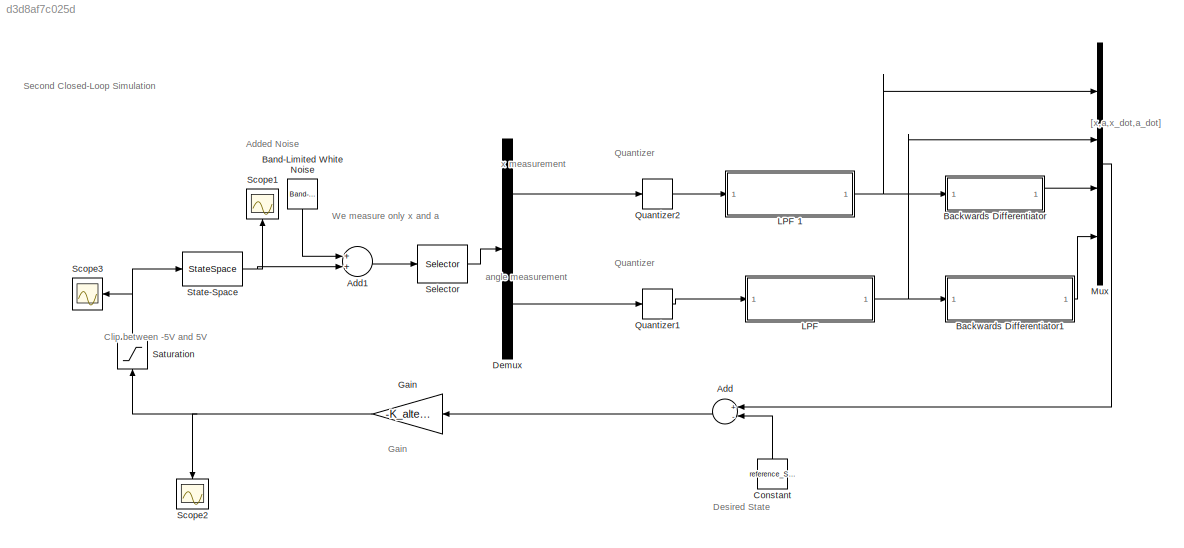
MODEL slx_d3d8af7c025d
KIND model
CONFIG AbsTol = auto
CONFIG EnableMultiTasking = off
CONFIG FixedStep = auto
CONFIG MaxStep = auto
CONFIG MinStep = auto
CONFIG RelTol = 1e-3
CONFIG SampleTimeConstraint = Unconstrained
CONFIG Solver = VariableStepAuto
CONFIG SolverName = VariableStepAuto
CONFIG StartTime = 0.0
CONFIG StopTime = 10.0
BLOCK [Sum] Add
  InputSameDT = off
  Inputs = +-
  OutDataTypeStr = Inherit: Inherit via internal rule
  Ports = [2, 1]
  SaturateOnIntegerOverflow = off
BLOCK [Sum] Add1
  InputSameDT = off
  OutDataTypeStr = Inherit: Inherit via internal rule
  Ports = [2, 1]
  SaturateOnIntegerOverflow = off
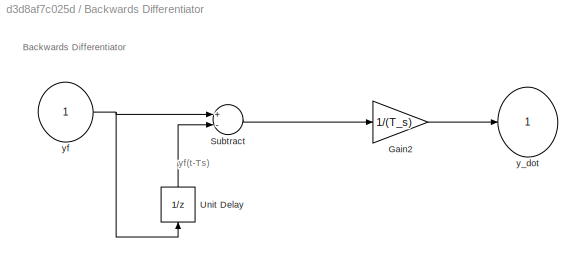
BLOCK [SubSystem] Backwards Differentiator
  Ports = [1, 1]
  RequestExecContextInheritance = off
BLOCK [Gain] Backwards Differentiator/Gain2
  Gain = 1/(T_s)
  OutDataTypeStr = Inherit: Inherit via internal rule
  ParamDataTypeStr = Inherit: Inherit via internal rule
  SaturateOnIntegerOverflow = off
BLOCK [Sum] Backwards Differentiator/Subtract
  InputSameDT = off
  Inputs = +-
  OutDataTypeStr = Inherit: Inherit via internal rule
  Ports = [2, 1]
  SaturateOnIntegerOverflow = off
BLOCK [UnitDelay] Backwards Differentiator/Unit Delay
  InputProcessing = Elements as channels (sample based)
  SampleTime = T_s
BLOCK [Outport] Backwards Differentiator/y_dot
  IconDisplay = Port number
BLOCK [Inport] Backwards Differentiator/yf
  IconDisplay = Port number
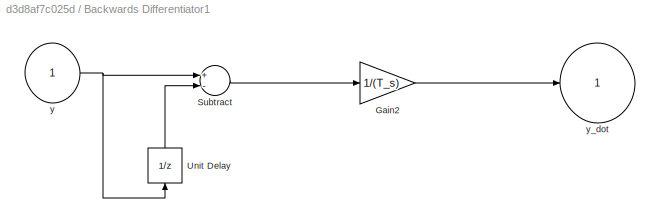
BLOCK [SubSystem] Backwards Differentiator1
  Ports = [1, 1]
  RequestExecContextInheritance = off
BLOCK [Gain] Backwards Differentiator1/Gain2
  Gain = 1/(T_s)
  OutDataTypeStr = Inherit: Inherit via internal rule
  ParamDataTypeStr = Inherit: Inherit via internal rule
  SaturateOnIntegerOverflow = off
BLOCK [Sum] Backwards Differentiator1/Subtract
  InputSameDT = off
  Inputs = +-
  OutDataTypeStr = Inherit: Inherit via internal rule
  Ports = [2, 1]
  SaturateOnIntegerOverflow = off
BLOCK [UnitDelay] Backwards Differentiator1/Unit Delay
  InputProcessing = Elements as channels (sample based)
  SampleTime = T_s
BLOCK [Inport] Backwards Differentiator1/y
  IconDisplay = Port number
BLOCK [Outport] Backwards Differentiator1/y_dot
  IconDisplay = Port number
BLOCK [Reference] Band-Limited White Noise  REF=simulink/Sources/Band-Limited
White Noise
  Ports = [0, 1]
  SourceBlock = simulink/Sources/Band-Limited\nWhite Noise
  SourceProductBaseCode = SL
  SourceProductName = Simulink
  SourceType = Band-Limited White Noise.
BLOCK [Constant] Constant
  Value = reference_State
BLOCK [Demux] Demux
  DisplayOption = bar
  Outputs = 2
  Ports = [1, 2]
BLOCK [Gain] Gain
  Gain = -K_alternative
  Multiplication = Matrix(K*u) (u vector)
  OutDataTypeStr = Inherit: Inherit via internal rule
  ParamDataTypeStr = Inherit: Inherit via internal rule
  SaturateOnIntegerOverflow = off
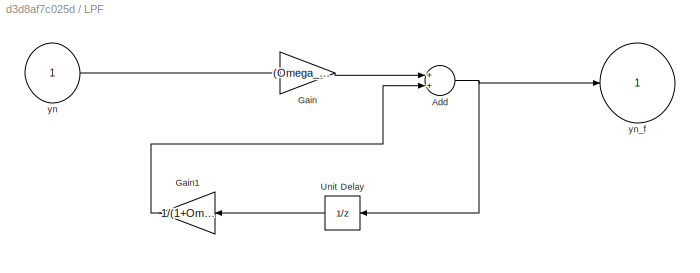
BLOCK [SubSystem] LPF 
  Ports = [1, 1]
  RequestExecContextInheritance = off
BLOCK [Sum] LPF /Add
  InputSameDT = off
  OutDataTypeStr = Inherit: Inherit via internal rule
  Ports = [2, 1]
  SaturateOnIntegerOverflow = off
BLOCK [Gain] LPF /Gain
  Gain = (Omega_c*T_s)/(1+Omega_c*T_s)
  OutDataTypeStr = Inherit: Inherit via internal rule
  ParamDataTypeStr = Inherit: Inherit via internal rule
  SaturateOnIntegerOverflow = off
BLOCK [Gain] LPF /Gain1
  Gain = 1/(1+Omega_c*T_s)
  OutDataTypeStr = Inherit: Inherit via internal rule
  ParamDataTypeStr = Inherit: Inherit via internal rule
  SaturateOnIntegerOverflow = off
BLOCK [UnitDelay] LPF /Unit Delay
  InputProcessing = Elements as channels (sample based)
  SampleTime = T_s
BLOCK [Inport] LPF /yn
  IconDisplay = Port number
BLOCK [Outport] LPF /yn_f
  IconDisplay = Port number
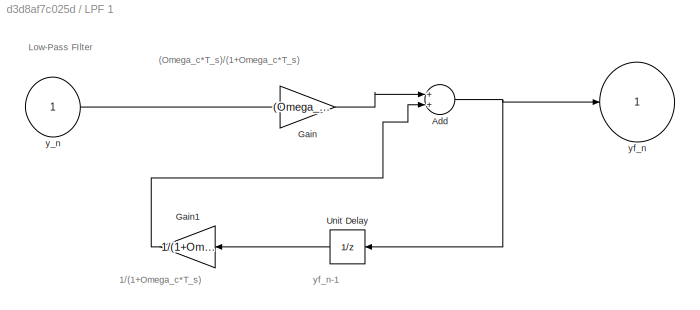
BLOCK [SubSystem] LPF 1
  Ports = [1, 1]
  RequestExecContextInheritance = off
BLOCK [Sum] LPF 1/Add
  InputSameDT = off
  OutDataTypeStr = Inherit: Inherit via internal rule
  Ports = [2, 1]
  SaturateOnIntegerOverflow = off
BLOCK [Gain] LPF 1/Gain
  Gain = (Omega_c*T_s)/(1+Omega_c*T_s)
  OutDataTypeStr = Inherit: Inherit via internal rule
  ParamDataTypeStr = Inherit: Inherit via internal rule
  SaturateOnIntegerOverflow = off
BLOCK [Gain] LPF 1/Gain1
  Gain = 1/(1+Omega_c*T_s)
  OutDataTypeStr = Inherit: Inherit via internal rule
  ParamDataTypeStr = Inherit: Inherit via internal rule
  SaturateOnIntegerOverflow = off
BLOCK [UnitDelay] LPF 1/Unit Delay
  InputProcessing = Elements as channels (sample based)
  SampleTime = T_s
BLOCK [Inport] LPF 1/y_n
  IconDisplay = Port number
BLOCK [Outport] LPF 1/yf_n
  IconDisplay = Port number
BLOCK [Mux] Mux
  DisplayOption = bar
  Ports = [4, 1]
BLOCK [Quantizer] Quantizer1
  QuantizationInterval = Q_interval
BLOCK [Quantizer] Quantizer2
  QuantizationInterval = Q_interval
BLOCK [Saturate] Saturation
  InputPortMap = u0
  LowerLimit = -V_max
  Ports = [1, 1]
  UpperLimit = V_max
BLOCK [Scope] Scope1
  Floating = off
  NumInputPorts = 1
  Ports = [1]
  ScopeSpecificationString = Simulink.scopes.TimeScopeBlockCfg('CurrentConfiguration', extmgr.ConfigurationSet(extmgr.Configuration('Core','General UI',true,'FigureColor',[1 1 1]),extmgr.Configuration('Core','Source UI',true),extmgr.Configuration('Sources','WiredSimulink',true,'DataLogging',true,'DataLoggingVariableName','xsecondloopdink','DataLoggingSaveFormat','StructureWithTime'),extmgr.Configuration('Visuals','Time Domain...<+2217ch>
BLOCK [Scope] Scope2
  Floating = off
  NumInputPorts = 1
  Ports = [1]
  ScopeSpecificationString = Simulink.scopes.TimeScopeBlockCfg('CurrentConfiguration', extmgr.ConfigurationSet(extmgr.Configuration('Core','General UI',true,'FigureColor',[1 1 1]),extmgr.Configuration('Core','Source UI',true),extmgr.Configuration('Sources','WiredSimulink',true,'DataLoggingVariableName','ScopeData1'),extmgr.Configuration('Visuals','Time Domain',true,'SerializedDisplays',{struct('MinYLimReal','-5.39266','MaxYLi...<+2093ch>
BLOCK [Scope] Scope3
  Floating = off
  NumInputPorts = 1
  Ports = [1]
  ScopeSpecificationString = Simulink.scopes.TimeScopeBlockCfg('CurrentConfiguration', extmgr.ConfigurationSet(extmgr.Configuration('Core','General UI',true,'FigureColor',[1 1 1]),extmgr.Configuration('Core','Source UI',true),extmgr.Configuration('Sources','WiredSimulink',true,'DataLoggingVariableName','ScopeData2'),extmgr.Configuration('Visuals','Time Domain',true,'SerializedDisplays',{struct('MinYLimReal','-5.39266','MaxYLi...<+2059ch>
BLOCK [Selector] Selector
  IndexOptions = Index vector (dialog)
  Indices = [1 2]
  InputPortWidth = 4
  OutputSizes = 1
  Ports = [1, 1]
BLOCK [StateSpace] State-Space
  A = A
  B = B
  C = C
  D = D
  InitialCondition = intial_State
  Ports = [1, 1]
ANNOTATION (root): Second Closed-Loop Simulation
ANNOTATION (root): Added Noise
ANNOTATION (root): Clip between -5V and 5V
ANNOTATION (root): Desired State
ANNOTATION (root): Gain
ANNOTATION (root): Quantizer
ANNOTATION (root): We measure only x and a
ANNOTATION (root): [x,a,x_dot,a_dot]
ANNOTATION (root): angle measurement
ANNOTATION (root): x measurement
ANNOTATION Backwards Differentiator: Backwards Differentiator
ANNOTATION Backwards Differentiator: yf(t-Ts)
ANNOTATION LPF 1: (Omega_c*T_s)/(1+Omega_c*T_s)
ANNOTATION LPF 1: 1/(1+Omega_c*T_s)
ANNOTATION LPF 1: Low-Pass FIlter
ANNOTATION LPF 1: yf_n-1
LINE Add1:1 -> Selector:1
LINE Add:1 -> Gain:1
LINE Backwards Differentiator/Gain2:1 -> Backwards Differentiator/y_dot:1
LINE Backwards Differentiator/Subtract:1 -> Backwards Differentiator/Gain2:1
LINE Backwards Differentiator/Unit Delay:1 -> Backwards Differentiator/Subtract:2
NET Backwards Differentiator/yf:1 -> Backwards Differentiator/Subtract:1, Backwards Differentiator/Unit Delay:1
LINE Backwards Differentiator1/Gain2:1 -> Backwards Differentiator1/y_dot:1
LINE Backwards Differentiator1/Subtract:1 -> Backwards Differentiator1/Gain2:1
LINE Backwards Differentiator1/Unit Delay:1 -> Backwards Differentiator1/Subtract:2
NET Backwards Differentiator1/y:1 -> Backwards Differentiator1/Subtract:1, Backwards Differentiator1/Unit Delay:1
LINE Backwards Differentiator1:1 -> Mux:4
LINE Backwards Differentiator:1 -> Mux:3
LINE Band-Limited White Noise:1 -> Add1:1
LINE Constant:1 -> Add:2
LINE Demux:1 -> Quantizer2:1
LINE Demux:2 -> Quantizer1:1
NET Gain:1 -> Saturation:1, Scope2:1
NET LPF /Add:1 -> LPF /Unit Delay:1, LPF /yn_f:1
LINE LPF /Gain1:1 -> LPF /Add:2
LINE LPF /Gain:1 -> LPF /Add:1
LINE LPF /Unit Delay:1 -> LPF /Gain1:1
LINE LPF /yn:1 -> LPF /Gain:1
NET LPF 1/Add:1 -> LPF 1/Unit Delay:1, LPF 1/yf_n:1
LINE LPF 1/Gain1:1 -> LPF 1/Add:2
LINE LPF 1/Gain:1 -> LPF 1/Add:1
LINE LPF 1/Unit Delay:1 -> LPF 1/Gain1:1
LINE LPF 1/y_n:1 -> LPF 1/Gain:1
NET LPF 1:1 -> Backwards Differentiator:1, Mux:1
NET LPF :1 -> Backwards Differentiator1:1, Mux:2
LINE Mux:1 -> Add:1
LINE Quantizer1:1 -> LPF :1
LINE Quantizer2:1 -> LPF 1:1
NET Saturation:1 -> Scope3:1, State-Space:1
LINE Selector:1 -> Demux:1
NET State-Space:1 -> Add1:2, Scope1:1
note: NET lines group one-source signal fan-out (src -> all destinations, sorted); 1:1 wires keep LINE
